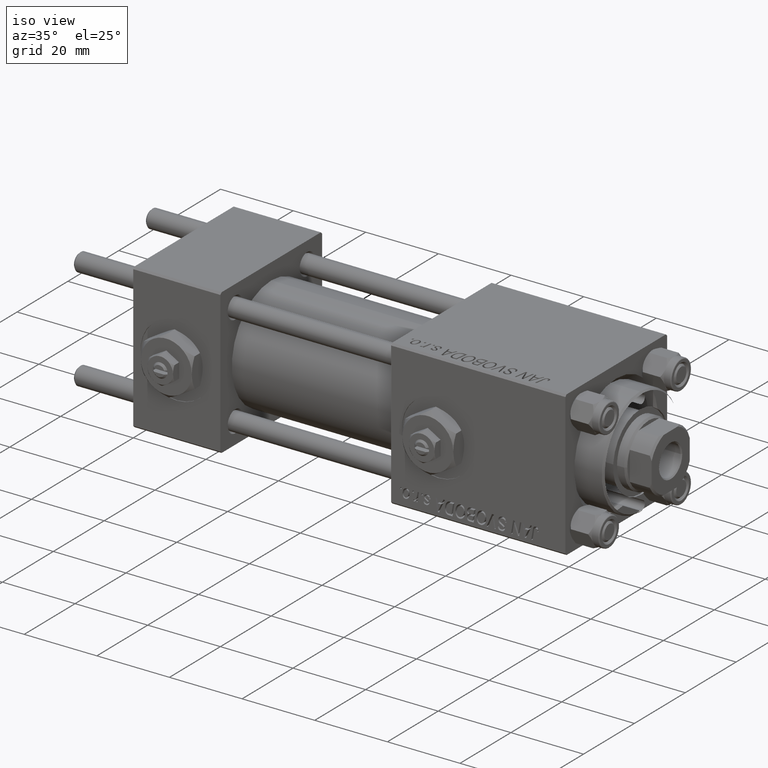
[diagram: clean part render]
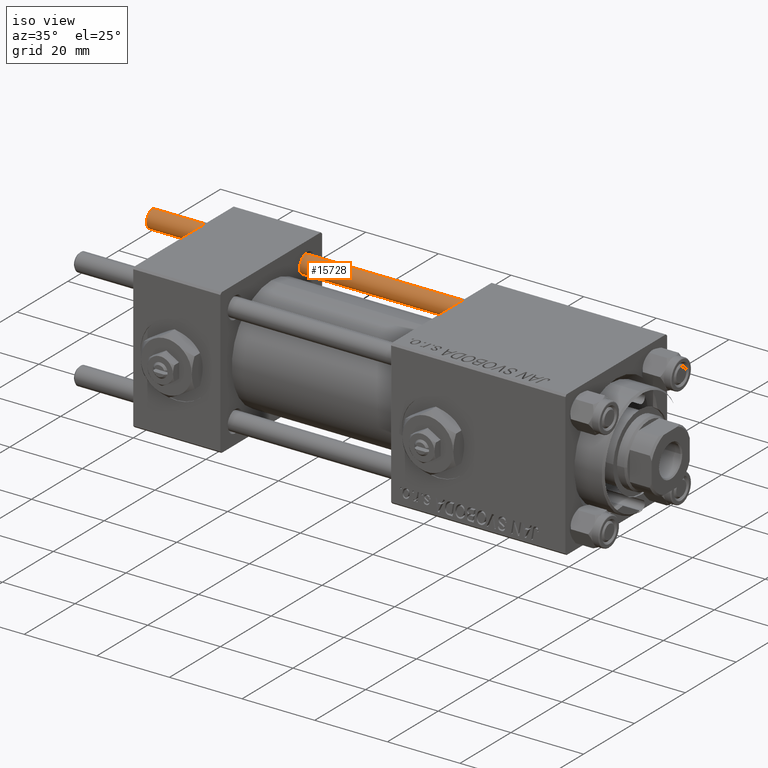
[diagram: same view with one face highlighted and labeled with its STEP entity id]
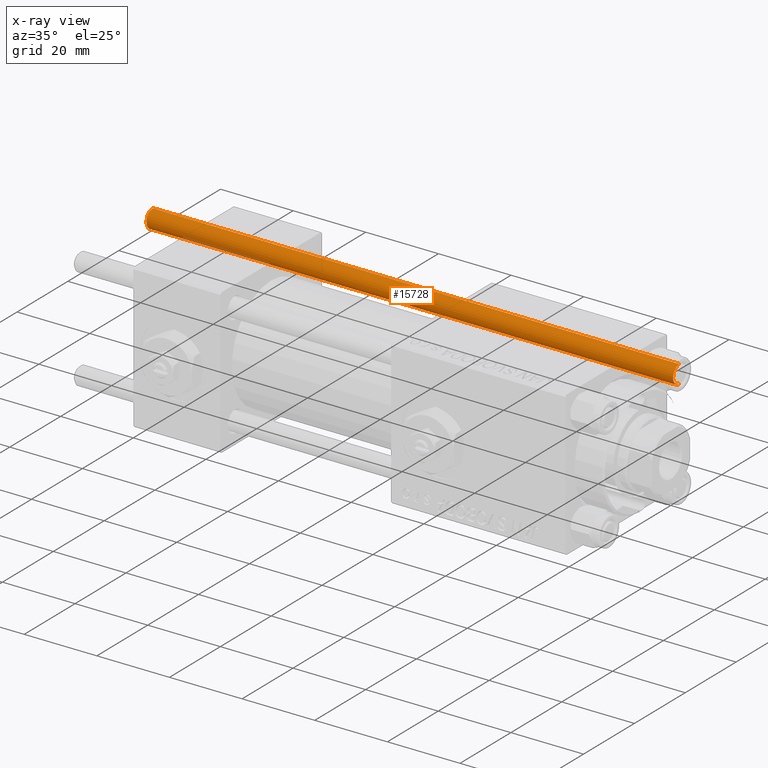
[diagram: x-ray of the same camera — body ghosted, the highlighted face saturated]
A machine part, iso view. The second image highlights one B-rep face of the part: STEP entity #15728.
The next image is the same camera in x-ray: the body ghosted, the highlighted face saturated — about 2% of this face is hidden behind the body in this view.
In plain terms, the highlighted cylindrical surface (edge-blend (fillet) strip) has radius 2.5 mm, axis along (-1, -0, -0).
Its self-contained STEP definition (entity closure, byte-faithful):
#18 = AXIS2_PLACEMENT_3D ( 'NONE', #38879, #2902, #18888 ) ;
#2902 = DIRECTION ( 'NONE',  ( -0.000000000000000000, -0.000000000000000000, -1.000000000000000000 ) ) ;
#4748 = EDGE_CURVE ( 'NONE', #7728, #23071, #41285, .T. ) ;
#4834 = DIRECTION ( 'NONE',  ( 1.000000000000000000, 0.000000000000000000, 0.000000000000000000 ) ) ;
#5191 = CARTESIAN_POINT ( 'NONE',  ( -2.500000000000000000, 0.000000000000000000, 146.0000000000000000 ) ) ;
#7728 = VERTEX_POINT ( 'NONE', #38231 ) ;
#8964 = DIRECTION ( 'NONE',  ( -0.000000000000000000, -0.000000000000000000, -1.000000000000000000 ) ) ;
#9486 = CARTESIAN_POINT ( 'NONE',  ( 2.500000000000000000, 3.061616997868383141E-16, 146.0000000000000000 ) ) ;
#11629 = CIRCLE ( 'NONE', #40986, 2.500000000000000000 ) ;
#12593 = DIRECTION ( 'NONE',  ( 0.000000000000000000, 0.000000000000000000, -1.000000000000000000 ) ) ;
#12595 = EDGE_CURVE ( 'NONE', #7728, #39955, #11629, .T. ) ;
#15728 = ADVANCED_FACE ( 'NONE', ( #42810 ), #22844, .T. ) ;
#17328 = VECTOR ( 'NONE', #8964, 1000.000000000000000 ) ;
#17871 = ORIENTED_EDGE ( 'NONE', *, *, #4748, .F. ) ;
#17896 = AXIS2_PLACEMENT_3D ( 'NONE', #20578, #48417, #4834 ) ;
#17985 = EDGE_LOOP ( 'NONE', ( #17871, #25240, #34759, #18031 ) ) ;
#18031 = ORIENTED_EDGE ( 'NONE', *, *, #25168, .T. ) ;
#18888 = DIRECTION ( 'NONE',  ( -1.000000000000000000, 0.000000000000000000, 0.000000000000000000 ) ) ;
#19937 = CARTESIAN_POINT ( 'NONE',  ( 0.000000000000000000, 0.000000000000000000, 145.5000000000000284 ) ) ;
#20578 = CARTESIAN_POINT ( 'NONE',  ( 0.000000000000000000, 0.000000000000000000, 0.5000000000000559552 ) ) ;
#22844 = CYLINDRICAL_SURFACE ( 'NONE', #18, 2.500000000000000000 ) ;
#23071 = VERTEX_POINT ( 'NONE', #48879 ) ;
#24915 = DIRECTION ( 'NONE',  ( 1.000000000000000000, 0.000000000000000000, 0.000000000000000000 ) ) ;
#25168 = EDGE_CURVE ( 'NONE', #37659, #23071, #40579, .T. ) ;
#25240 = ORIENTED_EDGE ( 'NONE', *, *, #12595, .T. ) ;
#27506 = VECTOR ( 'NONE', #45083, 1000.000000000000000 ) ;
#30264 = EDGE_CURVE ( 'NONE', #39955, #37659, #32771, .T. ) ;
#32771 = LINE ( 'NONE', #5191, #27506 ) ;
#34258 = CARTESIAN_POINT ( 'NONE',  ( -2.500000000000000000, 0.000000000000000000, 145.5000000000000284 ) ) ;
#34759 = ORIENTED_EDGE ( 'NONE', *, *, #30264, .T. ) ;
#37659 = VERTEX_POINT ( 'NONE', #50114 ) ;
#38231 = CARTESIAN_POINT ( 'NONE',  ( 2.500000000000000000, 3.061616997868383141E-16, 145.5000000000000284 ) ) ;
#38879 = CARTESIAN_POINT ( 'NONE',  ( 0.000000000000000000, 0.000000000000000000, 146.0000000000000000 ) ) ;
#39955 = VERTEX_POINT ( 'NONE', #34258 ) ;
#40579 = CIRCLE ( 'NONE', #17896, 2.500000000000000000 ) ;
#40986 = AXIS2_PLACEMENT_3D ( 'NONE', #19937, #12593, #24915 ) ;
#41285 = LINE ( 'NONE', #9486, #17328 ) ;
#42810 = FACE_OUTER_BOUND ( 'NONE', #17985, .T. ) ;
#45083 = DIRECTION ( 'NONE',  ( -0.000000000000000000, -0.000000000000000000, -1.000000000000000000 ) ) ;
#48417 = DIRECTION ( 'NONE',  ( -0.000000000000000000, -0.000000000000000000, 1.000000000000000000 ) ) ;
#48879 = CARTESIAN_POINT ( 'NONE',  ( 2.500000000000000000, 3.061616997868383141E-16, 0.5000000000000559552 ) ) ;
#50114 = CARTESIAN_POINT ( 'NONE',  ( -2.500000000000000000, 0.000000000000000000, 0.5000000000000559552 ) ) ;